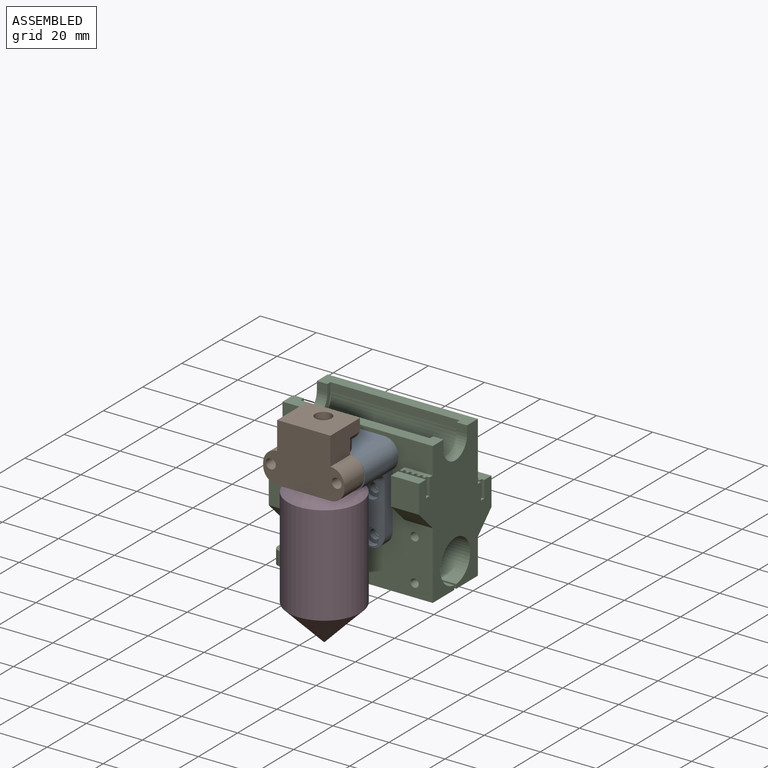
[diagram: assembled view]
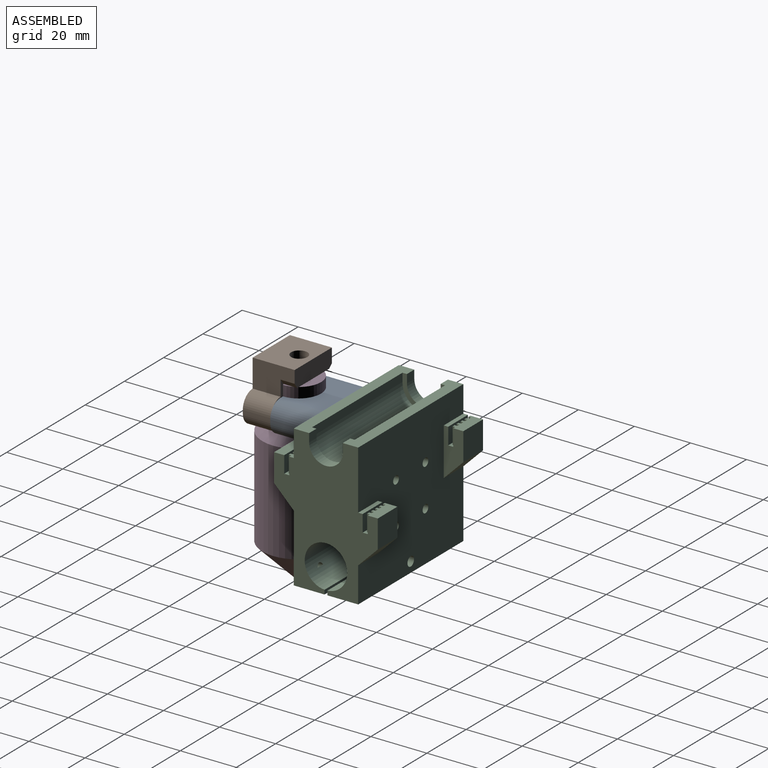
[diagram: assembled view, second angle]
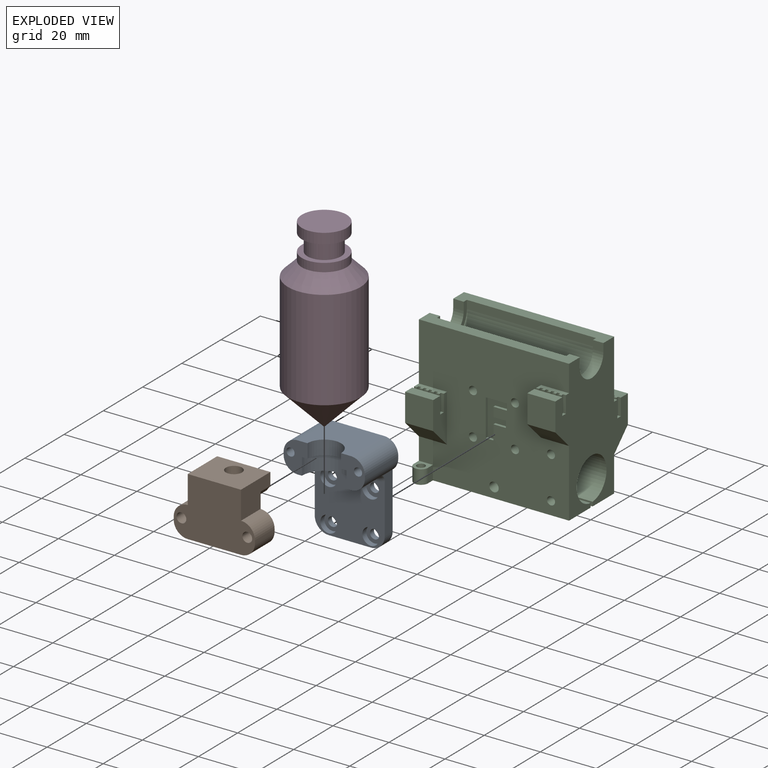
[diagram: exploded view]
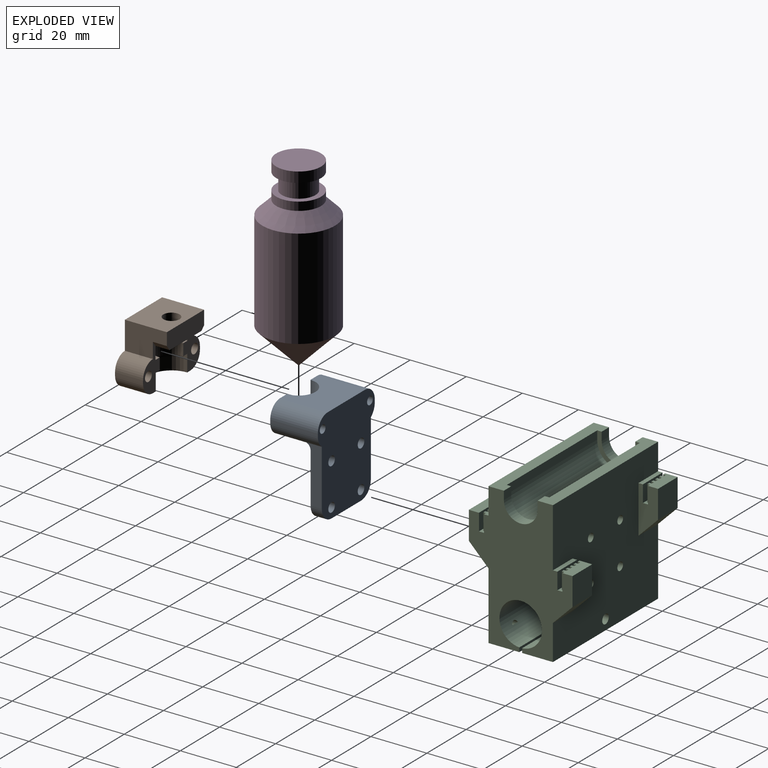
[diagram: exploded view, second angle]
ASSEMBLY  parts=4 mates=3
PART A: 37 faces, bbox 29.9x35x17 mm
  f0: plane 20x6mm, normal (-1,0,0), area 81mm2, adj f10,f11,f24,f32,f36
  f1: cylinder r=1.68mm len=3.35mm, axis (0,0,1), area 21mm2, adj f11,f23
  f2: cylinder r=1.68mm len=3.35mm, axis (0,0,1), area 21mm2, adj f11,f21
  f3: cylinder r=1.68mm len=3.35mm, axis (0,0,1), area 21mm2, adj f11,f19
  f4: cylinder r=1.68mm len=3.35mm, axis (0,0,1), area 21mm2, adj f11,f17
  f5: plane 11x8.5mm, normal (0,0,1), area 64.2mm2, adj f6,f9,f12,f14,f15,f26,f29,f32
  f6: cylinder r=6mm len=12mm, axis (0,1,0), area 94.2mm2, adj f5,f9,f13,f15
  f7: plane 15x4mm, normal (0,-1,0), area 60mm2, adj f10,f11,f24,f25
  f8: plane 20x6mm, normal (1,0,0), area 81mm2, adj f10,f11,f25,f31,f34
  f9: plane 19x17mm, normal (0,1,0), area 266.5mm2, adj f5,f6,f11,f13,f30,f33
  f10: plane 25x22.68mm, normal (0,0,1), area 427.5mm2, adj f0,f7,f8,f16,f18,f20,f22,f24
  f11: plane 35x29mm, normal (0,0,-1), area 840.3mm2, adj f0,f1,f2,f3,f4,f7,f8,f9
  f12: plane 19x11mm, normal (0,-1,0), area 108.5mm2, adj f5,f13,f14,f31,f32,f35
  f13: plane 11x8.5mm, normal (0,0,1), area 64.2mm2, adj f6,f9,f12,f14,f15,f27,f28,f30
  f14: cylinder r=8mm len=16mm, axis (0,-1,0), area 150.8mm2, adj f5,f12,f13,f15
  f15: plane 16x8mm, normal (0,-1,0), area 44mm2, adj f5,f6,f13,f14
  f16: cylinder r=3mm len=6mm, axis (0,0,1), area 37.7mm2, adj f10,f17
  f17: plane 6x6mm, normal (0,0,1), area 19.5mm2, adj f4,f16
  f18: cylinder r=3mm len=6mm, axis (0,0,1), area 37.7mm2, adj f10,f19
  f19: plane 6x6mm, normal (0,0,1), area 19.5mm2, adj f3,f18
  f20: cylinder r=3mm len=6mm, axis (0,0,1), area 37.7mm2, adj f10,f21
  f21: plane 6x6mm, normal (0,0,1), area 19.5mm2, adj f2,f20
  f22: cylinder r=3mm len=6mm, axis (0,0,1), area 37.7mm2, adj f10,f23
  f23: plane 6x6mm, normal (0,0,1), area 19.5mm2, adj f1,f22
  f24: cylinder r=5mm len=5mm, axis (0,0,1), area 31.4mm2, adj f0,f7,f10,f11
  f25: cylinder r=5mm len=5mm, axis (0,0,-1), area 31.4mm2, adj f7,f8,f10,f11
  f26: plane 17x1mm, normal (-1,0,0), area 17mm2, adj f5,f11,f32,f33
  f27: plane 17x1mm, normal (1,0,0), area 17mm2, adj f11,f13,f30,f31
  f28: cylinder r=1.45mm len=17mm, axis (0,0,1), area 154.9mm2, adj f11,f13
  f29: cylinder r=1.45mm len=17mm, axis (0,0,1), area 154.9mm2, adj f5,f11
  f30: cylinder r=5mm len=17mm, axis (0,0,-1), area 133.5mm2, adj f9,f11,f13,f27
  f31: cylinder r=5mm len=17mm, axis (0,0,-1), area 114.2mm2, adj f8,f11,f12,f13,f27,f34
  f32: cylinder r=5mm len=17mm, axis (0,0,-1), area 114.2mm2, adj f0,f5,f11,f12,f26,f36
  f33: cylinder r=5mm len=17mm, axis (0,0,-1), area 133.5mm2, adj f5,f9,f11,f26
  f34: torus R=7mm, axis (0,0,1), area 9.9mm2, adj f8,f10,f31,f35
  f35: cylinder r=2mm len=19mm, axis (1,0,0), area 59.7mm2, adj f10,f12,f34,f36
  f36: torus R=7mm, axis (0,0,1), area 9.9mm2, adj f0,f10,f32,f35
PART B: 25 faces, bbox 29x21x15 mm
  f0: plane 16x8.5mm, normal (0,0,1), area 65.4mm2, adj f2,f4,f5,f6,f8,f9,f10,f13
  f1: plane 16.54x8.5mm, normal (0,0,1), area 65.7mm2, adj f2,f4,f5,f6,f7,f11,f12,f14
  f2: plane 19x10mm, normal (0,-1,0), area 89.5mm2, adj f0,f1,f3,f4,f10,f11
  f3: plane 29x21mm, normal (0,0,-1), area 468.3mm2, adj f2,f7,f8,f9,f10,f11,f12,f13
  f4: cylinder r=8mm len=16mm, axis (0,-1,0), area 150.8mm2, adj f0,f1,f2,f5
  f5: plane 16x8mm, normal (0,-1,0), area 44mm2, adj f0,f1,f4,f6
  f6: cylinder r=6mm len=12mm, axis (0,-1,0), area 79.2mm2, adj f0,f1,f5,f18
  f7: plane 10x1mm, normal (-1,0,0), area 10mm2, adj f1,f3,f11,f12
  f8: plane 10x1mm, normal (1,0,0), area 10mm2, adj f0,f3,f9,f10
  f9: cylinder r=5mm len=10mm, axis (0,0,-1), area 78.5mm2, adj f0,f3,f8,f15
  f10: cylinder r=5mm len=10mm, axis (0,0,1), area 78.5mm2, adj f0,f2,f3,f8
  f11: cylinder r=5mm len=10mm, axis (0,0,1), area 78.5mm2, adj f1,f2,f3,f7
  f12: cylinder r=5mm len=10mm, axis (0,0,-1), area 78.5mm2, adj f1,f3,f7,f16
  f13: cylinder r=1.75mm len=10mm, axis (0,0,1), area 110mm2, adj f0,f3
  f14: cylinder r=1.75mm len=10mm, axis (0,0,1), area 110mm2, adj f1,f3
  f15: plane 15x10mm, normal (1,0,0), area 125mm2, adj f0,f3,f9,f17,f21,f23
  f16: plane 15x10mm, normal (-1,0,0), area 122.3mm2, adj f1,f3,f12,f17,f22,f23
  f17: plane 19x15mm, normal (0,1,0), area 258.6mm2, adj f3,f15,f16,f23,f24
  f18: plane 16.28x8.14mm, normal (0,1,0), area 47.5mm2, adj f0,f1,f6,f19
  f19: cylinder r=8.14mm len=16.28mm, axis (0,-1,0), area 115mm2, adj f0,f1,f18,f20
  f20: plane 16.28x13.14mm, normal (0,-1,0), area 159mm2, adj f19,f21,f22,f23,f24
  f21: plane 5x1.36mm, normal (0.69,-0.72,0), area 9.4mm2, adj f0,f15,f20,f23
  f22: plane 5x1.84mm, normal (-0.8,-0.59,0), area 11.5mm2, adj f1,f16,f20,f23
  f23: plane 19x6.3mm, normal (0,0,1), area 117.6mm2, adj f15,f16,f17,f20,f21,f22
  f24: cylinder r=2.9mm len=6.3mm, axis (0,-1,0), area 114.8mm2, adj f17,f20
PART C: 152 faces, bbox 53.6x37x50.6 mm
  f0: plane 53.6x50.6mm, normal (0,-1,0), area 2241.4mm2, adj f1,f2,f3,f4,f5,f6,f7,f8
  f1: plane 50.6x37mm, normal (-1,0,0), area 1079mm2, adj f0,f2,f4,f9,f10,f12,f30,f31
  f2: plane 5x5mm, normal (0,0,1), area 15.7mm2, adj f0,f1,f3,f30,f52
  f3: plane 5x2.5mm, normal (1,0,0), area 12.5mm2, adj f0,f2,f4,f30
  f4: plane 53.6x16mm, normal (0,0,-1), area 605.3mm2, adj f0,f1,f3,f5,f30,f51,f52
  f5: plane 50.6x37mm, normal (1,0,0), area 1055.7mm2, adj f0,f4,f6,f8,f9,f39,f40,f48
  f6: plane 10x7mm, normal (0,-0.71,-0.71), area 99mm2, adj f0,f5,f7,f67
  f7: plane 17x7mm, normal (-1,0,0), area 89.1mm2, adj f0,f6,f8,f64,f65,f66,f67,f68
  f8: plane 10x2.5mm, normal (0,0,1), area 20.5mm2, adj f0,f5,f7,f63,f68,f69,f70,f71
  f9: plane 53.6x5.5mm, normal (0,0,1), area 221mm2, adj f0,f1,f5,f36,f62,f86,f87,f88
  f10: plane 10x2.5mm, normal (0,0,1), area 20.5mm2, adj f0,f1,f11,f35,f89,f90,f91,f92
  f11: plane 17x7mm, normal (1,0,0), area 83.7mm2, adj f0,f10,f12,f31,f32,f33,f34,f106
  f12: plane 10x7mm, normal (0,-0.71,-0.71), area 99mm2, adj f0,f1,f11,f31
  f13: cylinder r=1.45mm len=23mm, axis (0,-1,0), area 209.5mm2, adj f0,f40
  f14: cylinder r=1.45mm len=23mm, axis (0,-1,0), area 202.2mm2, adj f0,f40,f50
  f15: cylinder r=1.45mm len=23mm, axis (0,-1,0), area 202.2mm2, adj f0,f40,f50
  f16: cylinder r=1.68mm len=8.79mm, axis (0,-1,0), area 68.3mm2, adj f0,f50
  f17: cylinder r=1.45mm len=23mm, axis (0,-1,0), area 209.5mm2, adj f0,f40
  f18: cylinder r=1.45mm len=5mm, axis (0,-1,0), area 44.4mm2, adj f0,f50,f107
  f19: cylinder r=1.45mm len=5mm, axis (0,-1,0), area 45.6mm2, adj f0,f108
  f20: plane 2.75x1mm, normal (0,0,1), area 2.7mm2, adj f0,f21,f29,f109
  f21: plane 13.17x1mm, normal (1,0,0), area 13.2mm2, adj f0,f20,f22,f109
  f22: plane 7.55x1mm, normal (0,0,-1), area 7.5mm2, adj f0,f21,f23,f109
  f23: plane 2.29x1mm, normal (-1,0,0), area 2.3mm2, adj f0,f22,f24,f109
  f24: plane 4.8x1mm, normal (0,0,1), area 4.8mm2, adj f0,f23,f25,f109
  f25: plane 3.39x1mm, normal (-1,0,0), area 3.4mm2, adj f0,f24,f26,f109
  f26: plane 4.47x1mm, normal (0,0,-1), area 4.5mm2, adj f0,f25,f27,f109
  f27: plane 2.28x1mm, normal (-1,0,0), area 2.3mm2, adj f0,f26,f28,f109
  f28: plane 4.47x1mm, normal (0,0,1), area 4.5mm2, adj f0,f27,f29,f109
  f29: plane 5.2x1mm, normal (-1,0,0), area 5.2mm2, adj f0,f20,f28,f109
  f30: cylinder r=2.5mm len=5mm, axis (0,0,-1), area 39.3mm2, adj f1,f2,f3,f4
  f31: plane 10x10mm, normal (0,-1,0), area 100mm2, adj f1,f11,f12,f32
  f32: plane 10x3.6mm, normal (0,0,1), area 36mm2, adj f1,f11,f31,f33
  f33: plane 10x6mm, normal (0,1,0), area 60mm2, adj f1,f11,f32,f34
  f34: plane 10x1.8mm, normal (0,0,1), area 13.5mm2, adj f1,f11,f33,f35,f89,f90,f91,f92
  f35: plane 6x1mm, normal (0,-1,0), area 6mm2, adj f1,f10,f34,f89
  f36: plane 3.75x3mm, normal (0,1,0), area 11.2mm2, adj f1,f9,f37,f87
  f37: cylinder r=6mm len=12mm, axis (-1,0,0), area 70.7mm2, adj f1,f36,f38,f87
  f38: plane 3.75x3mm, normal (0,-1,0), area 11.2mm2, adj f1,f37,f39,f87
  f39: plane 53.6x5.5mm, normal (0,0,1), area 221mm2, adj f1,f5,f38,f40,f60,f87,f88,f110
  f40: plane 53.6x50.6mm, normal (0,1,0), area 2336.9mm2, adj f1,f5,f13,f14,f15,f17,f39,f41
  f41: plane 10x1.6mm, normal (0,0,1), area 16mm2, adj f1,f40,f42,f112
  f42: plane 10x6mm, normal (0,1,0), area 60mm2, adj f1,f41,f43,f112
  f43: plane 10x1.8mm, normal (0,0,1), area 13.5mm2, adj f1,f42,f44,f112,f114,f115,f116,f117
  f44: plane 6x1mm, normal (0,-1,0), area 6mm2, adj f1,f43,f45,f125
  f45: plane 10x4.5mm, normal (0,0,1), area 40.5mm2, adj f1,f44,f46,f112,f114,f115,f116,f117
  f46: plane 10x10mm, normal (0,1,0), area 100mm2, adj f1,f45,f47,f112
  f47: plane 10x7mm, normal (0,0.71,-0.71), area 99mm2, adj f1,f40,f46,f112
  f48: plane 53.6x11mm, normal (0,0,-1), area 589.6mm2, adj f1,f5,f40,f49
  f49: plane 53.6x1.52mm, normal (0,-1,0), area 81.3mm2, adj f1,f5,f48,f50
  f50: cylinder r=7.6mm len=53.6mm, axis (-1,0,0), area 2476.4mm2, adj f1,f5,f14,f15,f16,f18,f49,f51
  f51: plane 53.6x1.52mm, normal (0,1,0), area 81.3mm2, adj f1,f4,f5,f50
  f52: cylinder r=1.45mm len=5mm, axis (0,0,1), area 45.6mm2, adj f2,f4
  f53: plane 10x7mm, normal (0,0.71,-0.71), area 99mm2, adj f5,f40,f54,f113
  f54: plane 10x10mm, normal (0,1,0), area 100mm2, adj f5,f53,f55,f113
  f55: plane 10x4.5mm, normal (0,0,1), area 40.5mm2, adj f5,f54,f56,f113,f132,f133,f134,f135
  f56: plane 6x1mm, normal (0,-1,0), area 6mm2, adj f5,f55,f57,f149
  f57: plane 10x1.8mm, normal (0,0,1), area 13.5mm2, adj f5,f56,f58,f113,f132,f133,f134,f135
  f58: plane 10x6mm, normal (0,1,0), area 60mm2, adj f5,f57,f59,f113
  f59: plane 10x1.6mm, normal (0,0,1), area 16mm2, adj f5,f40,f58,f113
  f60: plane 3.75x3mm, normal (0,-1,0), area 11.2mm2, adj f5,f39,f61,f88
  f61: cylinder r=6mm len=12mm, axis (-1,0,0), area 70.7mm2, adj f5,f60,f62,f88
  f62: plane 3.75x3mm, normal (0,1,0), area 11.2mm2, adj f5,f9,f61,f88
  f63: plane 6x1mm, normal (0,-1,0), area 6mm2, adj f5,f8,f64,f85
  f64: plane 10x1.8mm, normal (0,0,1), area 13.5mm2, adj f5,f7,f63,f65,f68,f69,f70,f71
  f65: plane 10x6mm, normal (0,1,0), area 60mm2, adj f5,f7,f64,f66
  f66: plane 10x3.6mm, normal (0,0,1), area 36mm2, adj f5,f7,f65,f67
  f67: plane 10x10mm, normal (0,-1,0), area 100mm2, adj f5,f6,f7,f66
  f68: plane 6x1mm, normal (0,-1,0), area 6mm2, adj f7,f8,f64,f69
  f69: plane 6x0.9mm, normal (1,0,0), area 5.4mm2, adj f8,f64,f68,f70
  f70: plane 6x1mm, normal (0,-1,0), area 6mm2, adj f8,f64,f69,f71
  f71: plane 6x0.9mm, normal (-1,0,0), area 5.4mm2, adj f8,f64,f70,f72
  f72: plane 6x1mm, normal (0,-1,0), area 6mm2, adj f8,f64,f71,f73
  f73: plane 6x0.9mm, normal (1,0,0), area 5.4mm2, adj f8,f64,f72,f74
  f74: plane 6x1mm, normal (0,-1,0), area 6mm2, adj f8,f64,f73,f75
  f75: plane 6x0.9mm, normal (-1,0,0), area 5.4mm2, adj f8,f64,f74,f76
  f76: plane 6x1mm, normal (0,-1,0), area 6mm2, adj f8,f64,f75,f77
  f77: plane 6x0.9mm, normal (1,0,0), area 5.4mm2, adj f8,f64,f76,f78
  f78: plane 6x1mm, normal (0,-1,0), area 6mm2, adj f8,f64,f77,f79
  f79: plane 6x0.9mm, normal (-1,0,0), area 5.4mm2, adj f8,f64,f78,f80
  f80: plane 6x1mm, normal (0,-1,0), area 6mm2, adj f8,f64,f79,f81
  f81: plane 6x0.9mm, normal (1,0,0), area 5.4mm2, adj f8,f64,f80,f82
  f82: plane 6x1mm, normal (0,-1,0), area 6mm2, adj f8,f64,f81,f83
  f83: plane 6x0.9mm, normal (-1,0,0), area 5.4mm2, adj f8,f64,f82,f84
  f84: plane 6x1mm, normal (0,-1,0), area 6mm2, adj f8,f64,f83,f85
  f85: plane 6x0.9mm, normal (1,0,0), area 5.4mm2, adj f8,f63,f64,f84
  f86: plane 46.1x3mm, normal (0,1,0), area 138.3mm2, adj f9,f87,f88,f150
  f87: plane 15.2x10.6mm, normal (1,0,0), area 43.8mm2, adj f9,f36,f37,f38,f39,f86,f110,f150
  f88: plane 15.2x10.6mm, normal (-1,0,0), area 43.8mm2, adj f9,f39,f60,f61,f62,f86,f110,f150
  f89: plane 6x0.9mm, normal (1,0,0), area 5.4mm2, adj f10,f34,f35,f90
  f90: plane 6x1mm, normal (0,-1,0), area 6mm2, adj f10,f34,f89,f91
  f91: plane 6x0.9mm, normal (-1,0,0), area 5.4mm2, adj f10,f34,f90,f92
  f92: plane 6x1mm, normal (0,-1,0), area 6mm2, adj f10,f34,f91,f93
  f93: plane 6x0.9mm, normal (1,0,0), area 5.4mm2, adj f10,f34,f92,f94
  f94: plane 6x1mm, normal (0,-1,0), area 6mm2, adj f10,f34,f93,f95
  f95: plane 6x0.9mm, normal (-1,0,0), area 5.4mm2, adj f10,f34,f94,f96
  f96: plane 6x1mm, normal (0,-1,0), area 6mm2, adj f10,f34,f95,f97
  f97: plane 6x0.9mm, normal (1,0,0), area 5.4mm2, adj f10,f34,f96,f98
  f98: plane 6x1mm, normal (0,-1,0), area 6mm2, adj f10,f34,f97,f99
  f99: plane 6x0.9mm, normal (-1,0,0), area 5.4mm2, adj f10,f34,f98,f100
  f100: plane 6x1mm, normal (0,-1,0), area 6mm2, adj f10,f34,f99,f101
  f101: plane 6x0.9mm, normal (1,0,0), area 5.4mm2, adj f10,f34,f100,f102
  f102: plane 6x1mm, normal (0,-1,0), area 6mm2, adj f10,f34,f101,f103
  f103: plane 6x0.9mm, normal (-1,0,0), area 5.4mm2, adj f10,f34,f102,f104
  f104: plane 6x1mm, normal (0,-1,0), area 6mm2, adj f10,f34,f103,f105
  f105: plane 6x0.9mm, normal (1,0,0), area 5.4mm2, adj f10,f34,f104,f106
  f106: plane 6x1mm, normal (0,-1,0), area 6mm2, adj f10,f11,f34,f105
  f107: plane 2.9x1.96mm, normal (0,-1,0), area 4.8mm2, adj f18,f50
  f108: plane 2.9x2.9mm, normal (0,-1,0), area 6.6mm2, adj f19
  f109: plane 13.17x7.55mm, normal (0,-1,0), area 57.3mm2, adj f20,f21,f22,f23,f24,f25,f26,f27
  f110: plane 46.1x3mm, normal (0,-1,0), area 138.3mm2, adj f39,f87,f88,f150
  f111: cylinder r=1.68mm len=8.79mm, axis (0,-1,0), area 68.3mm2, adj f40,f151
  f112: plane 17x7mm, normal (1,0,0), area 83.7mm2, adj f40,f41,f42,f43,f45,f46,f47,f126
  f113: plane 17x7mm, normal (-1,0,0), area 89.1mm2, adj f40,f53,f54,f55,f57,f58,f59,f132
  f114: plane 6x1mm, normal (0,-1,0), area 6mm2, adj f43,f45,f115,f131
  f115: plane 6x0.9mm, normal (-1,0,0), area 5.4mm2, adj f43,f45,f114,f116
  f116: plane 6x1mm, normal (0,-1,0), area 6mm2, adj f43,f45,f115,f117
  f117: plane 6x0.9mm, normal (1,0,0), area 5.4mm2, adj f43,f45,f116,f118
  f118: plane 6x1mm, normal (0,-1,0), area 6mm2, adj f43,f45,f117,f119
  f119: plane 6x0.9mm, normal (-1,0,0), area 5.4mm2, adj f43,f45,f118,f120
  f120: plane 6x1mm, normal (0,-1,0), area 6mm2, adj f43,f45,f119,f121
  f121: plane 6x0.9mm, normal (1,0,0), area 5.4mm2, adj f43,f45,f120,f122
  f122: plane 6x1mm, normal (0,-1,0), area 6mm2, adj f43,f45,f121,f123
  f123: plane 6x0.9mm, normal (-1,0,0), area 5.4mm2, adj f43,f45,f122,f124
  f124: plane 6x1mm, normal (0,-1,0), area 6mm2, adj f43,f45,f123,f125
  f125: plane 6x0.9mm, normal (1,0,0), area 5.4mm2, adj f43,f44,f45,f124
  f126: plane 6x1mm, normal (0,-1,0), area 6mm2, adj f43,f45,f112,f127
  f127: plane 6x0.9mm, normal (1,0,0), area 5.4mm2, adj f43,f45,f126,f128
  f128: plane 6x1mm, normal (0,-1,0), area 6mm2, adj f43,f45,f127,f129
  f129: plane 6x0.9mm, normal (-1,0,0), area 5.4mm2, adj f43,f45,f128,f130
  f130: plane 6x1mm, normal (0,-1,0), area 6mm2, adj f43,f45,f129,f131
  f131: plane 6x0.9mm, normal (1,0,0), area 5.4mm2, adj f43,f45,f114,f130
  f132: plane 6x1mm, normal (0,-1,0), area 6mm2, adj f55,f57,f113,f133
  f133: plane 6x0.9mm, normal (1,0,0), area 5.4mm2, adj f55,f57,f132,f134
  f134: plane 6x1mm, normal (0,-1,0), area 6mm2, adj f55,f57,f133,f135
  f135: plane 6x0.9mm, normal (-1,0,0), area 5.4mm2, adj f55,f57,f134,f136
  f136: plane 6x1mm, normal (0,-1,0), area 6mm2, adj f55,f57,f135,f137
  f137: plane 6x0.9mm, normal (1,0,0), area 5.4mm2, adj f55,f57,f136,f138
  f138: plane 6x1mm, normal (0,-1,0), area 6mm2, adj f55,f57,f137,f139
  f139: plane 6x0.9mm, normal (-1,0,0), area 5.4mm2, adj f55,f57,f138,f140
  f140: plane 6x1mm, normal (0,-1,0), area 6mm2, adj f55,f57,f139,f141
  f141: plane 6x0.9mm, normal (1,0,0), area 5.4mm2, adj f55,f57,f140,f142
  f142: plane 6x1mm, normal (0,-1,0), area 6mm2, adj f55,f57,f141,f143
  f143: plane 6x0.9mm, normal (-1,0,0), area 5.4mm2, adj f55,f57,f142,f144
  f144: plane 6x1mm, normal (0,-1,0), area 6mm2, adj f55,f57,f143,f145
  f145: plane 6x0.9mm, normal (1,0,0), area 5.4mm2, adj f55,f57,f144,f146
  f146: plane 6x1mm, normal (0,-1,0), area 6mm2, adj f55,f57,f145,f147
  f147: plane 6x0.9mm, normal (-1,0,0), area 5.4mm2, adj f55,f57,f146,f148
  f148: plane 6x1mm, normal (0,-1,0), area 6mm2, adj f55,f57,f147,f149
  f149: plane 6x0.9mm, normal (1,0,0), area 5.4mm2, adj f55,f56,f57,f148
  f150: cylinder r=7.6mm len=46.1mm, axis (-1,0,0), area 1100.7mm2, adj f86,f87,f88,f110
  f151: cylinder r=7.6mm len=3.9mm, axis (-1,0,0), area 13.4mm2, adj f111
PART D: 9 faces, bbox 26x26x66.3 mm
  f0: cylinder r=8mm len=16mm, axis (0,0,-1), area 186mm2, adj f1,f2
  f1: plane 16x16mm, normal (0,0,1), area 201.1mm2, adj f0
  f2: plane 16x16mm, normal (0,0,-1), area 88mm2, adj f0,f3
  f3: cylinder r=6mm len=12mm, axis (0,0,1), area 226.2mm2, adj f2,f5
  f4: cylinder r=8mm len=16mm, axis (0,0,1), area 150.8mm2, adj f5,f8
  f5: plane 16x16mm, normal (0,0,1), area 88mm2, adj f3,f4
  f6: cylinder r=13mm len=35.6mm, axis (0,0,1), area 2907.9mm2, adj f7,f8
  f7: cone r=13mm half-angle=45deg, axis (0,0,1), area 750.8mm2, adj f6
  f8: cone r=13mm half-angle=45deg, axis (0,0,-1), area 466.5mm2, adj f4,f6
PLACE A rot(axis=(1,0,0),90deg) t=(14.3,0,14.24)mm
PLACE B rot(axis=(0,0.71,0.71),180deg) t=(39,-27,38.54)mm
PLACE C at identity
PLACE D t=(26.8,-17,49.24)mm
MATE fastened A.f4 <-> C.f13  axis (0,1,0) through (34.3,0,32.8)mm
MATE fastened D.f0 <-> A.f6  axis (0,0,1) through (26.8,-17,49.24)mm
MATE fastened B.f13 <-> A.f29  axis (0,1,0) through (14.75,-17,44.79)mm
